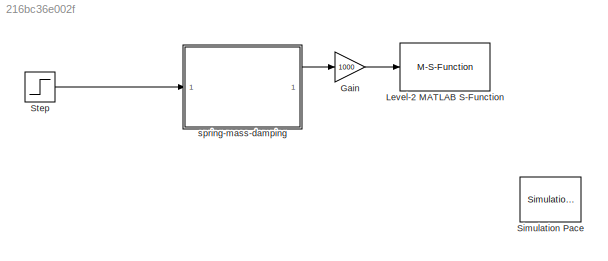
MODEL slx_216bc36e002f
KIND model
CONFIG AbsTol = auto
CONFIG EnableMultiTasking = off
CONFIG FixedStep = auto
CONFIG MaxStep = auto
CONFIG MinStep = auto
CONFIG PostLoadFcn = rigid_body = importrobot('urdf\mass\urdf\mass.urdf');\nrigid_body.DataFormat = 'column';\nrigid_body.Gravity = [0 -9.81 0];\nrobot = get_robot_chain(rigid_body, 'mass','base_link');\nrobot.gravity = [0 -9.81 0];
CONFIG RelTol = 1e-3
CONFIG SampleTimeConstraint = Unconstrained
CONFIG SolverName = VariableStepAuto
CONFIG StartTime = 0.0
CONFIG StopTime = 10.0
BLOCK [Gain] Gain
  Gain = 1000
BLOCK [M-S-Function] Level-2 MATLAB S-Function
  FunctionName = render_to_MICSys
BLOCK [Reference] Simulation Pace  REF=aerolibanimutils/Simulation Pace
  AttributesFormatString = %<SleepMode>\n%<SimulationPace> sec/sec
  SourceBlock = aerolibanimutils/Simulation Pace
  SourceType = Simulation Pace
BLOCK [Step] Step
  SampleTime = 0
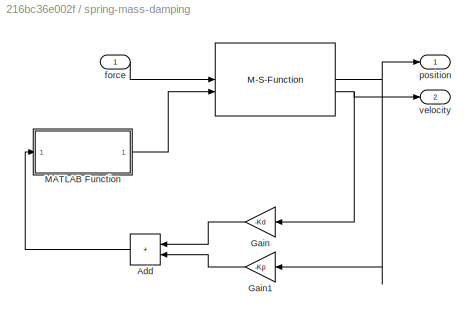
BLOCK [SubSystem] spring-mass-damping
BLOCK [M-S-Function] spring-mass-damping/ 
  FunctionName = robot_dynamics
  Parameters = robot, init_pos, init_vel
BLOCK [Sum] spring-mass-damping/Add
  IconShape = rectangular
BLOCK [Gain] spring-mass-damping/Gain
  Gain = -Kd
BLOCK [Gain] spring-mass-damping/Gain1
  Gain = -Kp
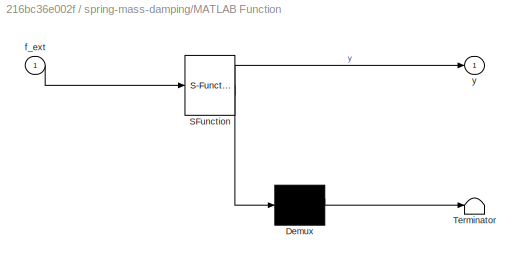
BLOCK [SubSystem] spring-mass-damping/MATLAB Function
  ErrorFcn = Stateflow.Translate.translate
  PermitHierarchicalResolution = ExplicitOnly
  SFBlockType = MATLAB Function
  TreatAsAtomicUnit = on
BLOCK [Demux] spring-mass-damping/MATLAB Function/ Demux 
  Outputs = 1
BLOCK [S-Function] spring-mass-damping/MATLAB Function/ SFunction 
  EnableBusSupport = off
  FunctionName = sf_sfun
  PortCounts = [1 2]
  SFcnIsStateOwnerBlock = off
  SFunctionDeploymentMode = off
  Tag = Stateflow S-Function 2
BLOCK [Terminator] spring-mass-damping/MATLAB Function/ Terminator 
BLOCK [Inport] spring-mass-damping/MATLAB Function/f_ext
BLOCK [Outport] spring-mass-damping/MATLAB Function/y
  VectorParamsAs1DForOutWhenUnconnected = off
BLOCK [Inport] spring-mass-damping/force
BLOCK [Outport] spring-mass-damping/position
BLOCK [Outport] spring-mass-damping/velocity
  Port = 2
LINE Gain:1 -> Level-2 MATLAB S-Function:1
LINE Step:1 -> spring-mass-damping:1
NET spring-mass-damping/ :1 -> spring-mass-damping/Gain1:1, spring-mass-damping/position:1
NET spring-mass-damping/ :2 -> spring-mass-damping/Gain:1, spring-mass-damping/velocity:1
LINE spring-mass-damping/Add:1 -> spring-mass-damping/MATLAB Function:1
LINE spring-mass-damping/Gain1:1 -> spring-mass-damping/Add:2
LINE spring-mass-damping/Gain:1 -> spring-mass-damping/Add:1
LINE spring-mass-damping/MATLAB Function:1 -> spring-mass-damping/ :2
LINE spring-mass-damping/force:1 -> spring-mass-damping/ :1
LINE spring-mass-damping:1 -> Gain:1
note: NET lines group one-source signal fan-out (src -> all destinations, sorted); 1:1 wires keep LINE
CHART spring-mass-damping/MATLAB Function states=1 transitions=1
  STATE_LABEL 'eML_blk_kernel()'
  STATE_LABEL "SCRIPT:\nfunction y = fcn(f_ext)\ny = [0, 0, 0, f_ext, 0, 0]';\n"
CHART  states=0 transitions=0
